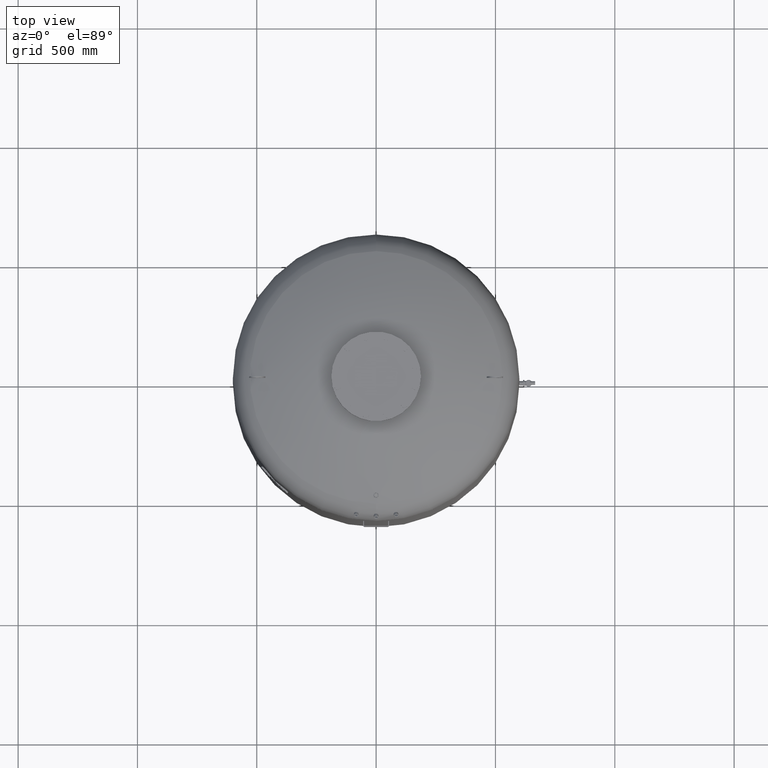
[diagram: clean part render]
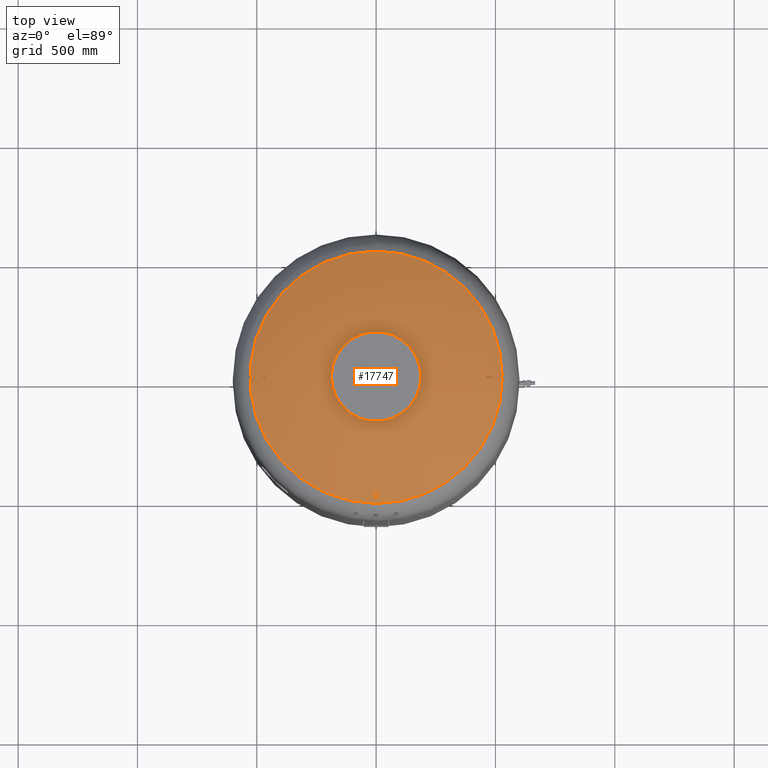
[diagram: same view with one face highlighted and labeled with its STEP entity id]
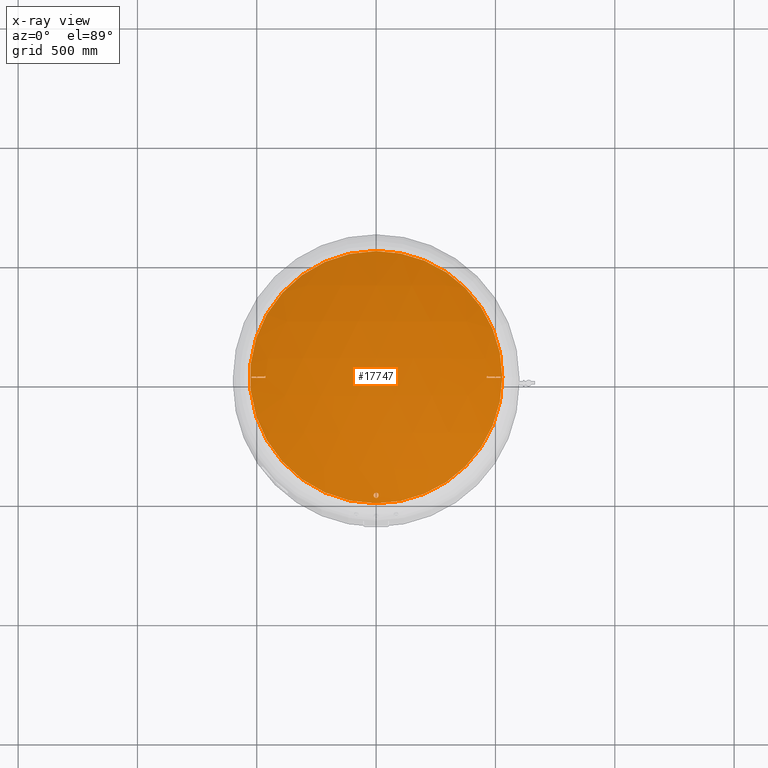
[diagram: x-ray of the same camera — body ghosted, the highlighted face saturated]
A machine part, top view. The second image highlights one B-rep face of the part: STEP entity #17747.
The next image is the same camera in x-ray: the body ghosted, the highlighted face saturated — about 0% of this face is hidden behind the body in this view.
In plain terms, the highlighted spherical surface has radius 1207 mm.
Its self-contained STEP definition (entity closure, byte-faithful):
#16529=CARTESIAN_POINT('',(-3.908790E-014,-505.650000000000260,2308.977681113990900));
#16530=VERTEX_POINT('',#16529);
#16546=CARTESIAN_POINT('',(-3.643333E-014,-484.350000000000310,2318.556003782712200));
#16547=VERTEX_POINT('',#16546);
#16554=CARTESIAN_POINT('',(-3.643333E-014,-484.350000000000310,2318.556003782712200));
#16555=CARTESIAN_POINT('',(-0.665611636080587,-484.350000000000310,2318.556003782712200));
#16556=CARTESIAN_POINT('',(-1.351712007087174,-484.413449330400450,2318.527596291778100));
#16557=CARTESIAN_POINT('',(-2.711455124781883,-484.677684778344770,2318.409278534069900));
#16558=CARTESIAN_POINT('',(-3.385112822109979,-484.878406691486020,2318.319396709681300));
#16559=CARTESIAN_POINT('',(-4.671983453209512,-485.404260841615380,2318.083876063063600));
#16560=CARTESIAN_POINT('',(-5.286383442477947,-485.729841940405830,2317.938035283821600));
#16561=CARTESIAN_POINT('',(-6.418662963042159,-486.474599944024990,2317.604341560041600));
#16562=CARTESIAN_POINT('',(-6.936540506419686,-486.893778895747520,2317.416486438550200));
#16563=CARTESIAN_POINT('',(-7.900192687897327,-487.823356474835690,2316.999774688893900));
#16564=CARTESIAN_POINT('',(-8.369020497877676,-488.373824638455970,2316.752944631033200));
#16565=CARTESIAN_POINT('',(-9.188808647865463,-489.567459190703860,2316.217505560420200));
#16566=CARTESIAN_POINT('',(-9.539857037879660,-490.210574780593670,2315.928918118605900));
#16567=CARTESIAN_POINT('',(-10.100625147679995,-491.546764270494920,2315.329066489736800));
#16568=CARTESIAN_POINT('',(-10.310736765037014,-492.240729558734700,2315.017401333808700));
#16569=CARTESIAN_POINT('',(-10.585453694089770,-493.631410911690980,2314.392563213996700));
#16570=CARTESIAN_POINT('',(-10.650000000000041,-494.328136578031940,2314.079385679025100));
#16571=CARTESIAN_POINT('',(-10.650000000000041,-495.672249771666320,2313.474961828123900));
#16572=CARTESIAN_POINT('',(-10.585380396556669,-496.369268012084660,2313.161397323186500));
#16573=CARTESIAN_POINT('',(-10.310462392525936,-497.760351114899380,2312.535323620084000));
#16574=CARTESIAN_POINT('',(-10.100224561864295,-498.454426017125230,2312.222810133959700));
#16575=CARTESIAN_POINT('',(-9.539219073899464,-499.790709135052230,2311.620892770933100));
#16576=CARTESIAN_POINT('',(-9.188061671035115,-500.433806541516050,2311.331089151720300));
#16577=CARTESIAN_POINT('',(-8.368086172563105,-501.627357286810650,2310.793043409988500));
#16578=CARTESIAN_POINT('',(-7.899179737395413,-502.177760642695720,2310.544825043460200));
#16579=CARTESIAN_POINT('',(-6.935591451669570,-503.107009891746540,2310.125643340669700));
#16580=CARTESIAN_POINT('',(-6.417878505985910,-503.525973237725740,2309.936594437422200));
#16581=CARTESIAN_POINT('',(-5.285911664195274,-504.270411104392510,2309.600610399233600));
#16582=CARTESIAN_POINT('',(-4.671659030031402,-504.595887700676880,2309.453675611559900));
#16583=CARTESIAN_POINT('',(-3.385018268838375,-505.121615967432380,2309.216307020834400));
#16584=CARTESIAN_POINT('',(-2.711440963249321,-505.322316471515020,2309.125671514436800));
#16585=CARTESIAN_POINT('',(-1.351770687093105,-505.586540768529060,2309.006343822394200));
#16586=CARTESIAN_POINT('',(-0.665662584297589,-505.650000000000260,2308.977681113990900));
#16587=CARTESIAN_POINT('',(-3.908790E-014,-505.650000000000260,2308.977681113990900));
#16588=B_SPLINE_CURVE_WITH_KNOTS('',3,(#16554,#16555,#16556,#16557,#16558,#16559,#16560,#16561,#16562,#16563,#16564,#16565,#16566,#16567,#16568,#16569,#16570,#16571,#16572,#16573,#16574,#16575,#16576,#16577,#16578,#16579,#16580,#16581,#16582,#16583,#16584,#16585,#16586,#16587),.UNSPECIFIED.,.F.,.U.,(4,2,2,2,2,2,2,2,2,2,2,2,2,2,2,2,4),(33.660410364601788,35.657245272843440,37.654080181085092,39.650915089326745,41.647749997568390,43.857754539841181,46.067759082113966,48.277763624386751,50.487768166659535,52.699043554402891,54.910318942146247,57.121594329889604,59.332869717632960,61.329857470525610,63.326845223418267,65.323832976310925,67.320820729203575),.UNSPECIFIED.);
#16589=EDGE_CURVE('',#16547,#16530,#16588,.T.);
#17478=CARTESIAN_POINT('',(1.036830E-013,528.621296296296240,2298.084570483804800));
#17479=VERTEX_POINT('',#17478);
#17487=CARTESIAN_POINT('',(528.621296296296240,-2.239550E-014,2298.084570483804800));
#17488=VERTEX_POINT('',#17487);
#17489=CARTESIAN_POINT('',(3.410787E-015,-2.239550E-014,2298.084570483804800));
#17490=DIRECTION('',(0.0,0.0,-1.0));
#17491=DIRECTION('',(1.0,0.0,0.0));
#17492=AXIS2_PLACEMENT_3D('',#17489,#17490,#17491);
#17493=CIRCLE('',#17492,528.621296296296240);
#17494=EDGE_CURVE('',#17479,#17488,#17493,.T.);
#17496=CARTESIAN_POINT('',(3.894773E-014,-528.621296296296240,2298.084570483804800));
#17497=VERTEX_POINT('',#17496);
#17498=CARTESIAN_POINT('',(3.410787E-015,-2.239550E-014,2298.084570483804800));
#17499=DIRECTION('',(0.0,0.0,-1.0));
#17500=DIRECTION('',(1.0,0.0,0.0));
#17501=AXIS2_PLACEMENT_3D('',#17498,#17499,#17500);
#17502=CIRCLE('',#17501,528.621296296296240);
#17503=EDGE_CURVE('',#17488,#17497,#17502,.T.);
#17615=CARTESIAN_POINT('',(1.237204E-013,-2.217223E-013,1213.0));
#17616=DIRECTION('',(0.0,-1.0,0.0));
#17617=DIRECTION('',(-1.0,0.0,0.0));
#17618=AXIS2_PLACEMENT_3D('',#17615,#17616,#17617);
#17619=SPHERICAL_SURFACE('',#17618,1207.000000000000200);
#17620=ORIENTED_EDGE('',*,*,#17503,.F.);
#17621=ORIENTED_EDGE('',*,*,#17494,.F.);
#17622=CARTESIAN_POINT('',(3.410787E-015,-2.239550E-014,2298.084570483804800));
#17623=DIRECTION('',(0.0,0.0,-1.0));
#17624=DIRECTION('',(1.0,0.0,0.0));
#17625=AXIS2_PLACEMENT_3D('',#17622,#17623,#17624);
#17626=CIRCLE('',#17625,528.621296296296240);
#17627=EDGE_CURVE('',#17497,#17479,#17626,.T.);
#17628=ORIENTED_EDGE('',*,*,#17627,.F.);
#17629=EDGE_LOOP('',(#17620,#17621,#17628));
#17630=FACE_OUTER_BOUND('',#17629,.T.);
#17631=CARTESIAN_POINT('',(463.451600218966230,-3.000000000000292,2327.474142479079100));
#17632=VERTEX_POINT('',#17631);
#17633=CARTESIAN_POINT('',(463.451600218966350,2.999999999999727,2327.474142479080000));
#17634=VERTEX_POINT('',#17633);
#17635=CARTESIAN_POINT('',(143.673995061822890,7.801844E-013,1173.196972395376000));
#17636=DIRECTION('',(-0.963701753162816,-6.720348E-015,0.266981143436978));
#17637=DIRECTION('',(-0.266981143436977,0.0,-0.963701753162815));
#17638=AXIS2_PLACEMENT_3D('',#17635,#17636,#17637);
#17639=CIRCLE('',#17638,1197.757280143385700);
#17640=EDGE_CURVE('',#17632,#17634,#17639,.T.);
#17641=ORIENTED_EDGE('',*,*,#17640,.T.);
#17642=CARTESIAN_POINT('',(521.618748390259730,3.000000000000095,2301.464000933324300));
#17643=VERTEX_POINT('',#17642);
#17644=CARTESIAN_POINT('',(1.015543E-013,2.999999999995042,1213.0));
#17645=DIRECTION('',(0.0,1.0,0.0));
#17646=DIRECTION('',(0.0,0.0,-1.0));
#17647=AXIS2_PLACEMENT_3D('',#17644,#17645,#17646);
#17648=CIRCLE('',#17647,1206.996271742378000);
#17649=EDGE_CURVE('',#17634,#17643,#17648,.T.);
#17650=ORIENTED_EDGE('',*,*,#17649,.T.);
#17651=CARTESIAN_POINT('',(521.618748390259610,-2.999999999999862,2301.464000933324300));
#17652=VERTEX_POINT('',#17651);
#17653=CARTESIAN_POINT('',(204.387205511080450,1.203566E-012,1156.377160358846400));
#17654=DIRECTION('',(0.963701753162815,6.720348E-015,-0.266981143436977));
#17655=DIRECTION('',(0.266981143436977,0.0,0.963701753162815));
#17656=AXIS2_PLACEMENT_3D('',#17653,#17654,#17655);
#17657=CIRCLE('',#17656,1188.220823018324600);
#17658=EDGE_CURVE('',#17643,#17652,#17657,.T.);
#17659=ORIENTED_EDGE('',*,*,#17658,.T.);
#17660=CARTESIAN_POINT('',(1.458865E-013,-3.000000000004973,1213.0));
#17661=DIRECTION('',(0.0,-1.0,0.0));
#17662=DIRECTION('',(0.0,0.0,1.0));
#17663=AXIS2_PLACEMENT_3D('',#17660,#17661,#17662);
#17664=CIRCLE('',#17663,1206.996271742378000);
#17665=EDGE_CURVE('',#17652,#17632,#17664,.T.);
#17666=ORIENTED_EDGE('',*,*,#17665,.T.);
#17667=EDGE_LOOP('',(#17641,#17650,#17659,#17666));
#17668=FACE_BOUND('',#17667,.T.);
#17669=CARTESIAN_POINT('',(-463.451600218966290,2.999999999999727,2327.474142479079500));
#17670=VERTEX_POINT('',#17669);
#17671=CARTESIAN_POINT('',(-463.451600218966230,-3.000000000000292,2327.474142479079100));
#17672=VERTEX_POINT('',#17671);
#17673=CARTESIAN_POINT('',(-143.673995061822890,7.801844E-013,1173.196972395376000));
#17674=DIRECTION('',(0.963701753162816,-6.720348E-015,0.266981143436978));
#17675=DIRECTION('',(-0.266981143436977,0.0,0.963701753162815));
#17676=AXIS2_PLACEMENT_3D('',#17673,#17674,#17675);
#17677=CIRCLE('',#17676,1197.757280143385700);
#17678=EDGE_CURVE('',#17670,#17672,#17677,.T.);
#17679=ORIENTED_EDGE('',*,*,#17678,.T.);
#17680=CARTESIAN_POINT('',(-521.618748390259610,-2.999999999999862,2301.464000933324300));
#17681=VERTEX_POINT('',#17680);
#17682=CARTESIAN_POINT('',(1.015543E-013,-3.000000000004973,1213.0));
#17683=DIRECTION('',(0.0,-1.0,0.0));
#17684=DIRECTION('',(0.0,0.0,1.0));
#17685=AXIS2_PLACEMENT_3D('',#17682,#17683,#17684);
#17686=CIRCLE('',#17685,1206.996271742378000);
#17687=EDGE_CURVE('',#17672,#17681,#17686,.T.);
#17688=ORIENTED_EDGE('',*,*,#17687,.T.);
#17689=CARTESIAN_POINT('',(-521.618748390259730,3.000000000000095,2301.464000933324300));
#17690=VERTEX_POINT('',#17689);
#17691=CARTESIAN_POINT('',(-204.387205511080400,1.203566E-012,1156.377160358846400));
#17692=DIRECTION('',(-0.963701753162815,6.720348E-015,-0.266981143436977));
#17693=DIRECTION('',(0.266981143436977,0.0,-0.963701753162815));
#17694=AXIS2_PLACEMENT_3D('',#17691,#17692,#17693);
#17695=CIRCLE('',#17694,1188.220823018324600);
#17696=EDGE_CURVE('',#17681,#17690,#17695,.T.);
#17697=ORIENTED_EDGE('',*,*,#17696,.T.);
#17698=CARTESIAN_POINT('',(1.458865E-013,2.999999999995042,1213.0));
#17699=DIRECTION('',(0.0,1.0,0.0));
#17700=DIRECTION('',(0.0,0.0,-1.0));
#17701=AXIS2_PLACEMENT_3D('',#17698,#17699,#17700);
#17702=CIRCLE('',#17701,1206.996271742378000);
#17703=EDGE_CURVE('',#17690,#17670,#17702,.T.);
#17704=ORIENTED_EDGE('',*,*,#17703,.T.);
#17705=EDGE_LOOP('',(#17679,#17688,#17697,#17704));
#17706=FACE_BOUND('',#17705,.T.);
#17707=CARTESIAN_POINT('',(-3.908790E-014,-505.650000000000260,2308.977681113990900));
#17708=CARTESIAN_POINT('',(0.665662584297512,-505.650000000000260,2308.977681113990900));
#17709=CARTESIAN_POINT('',(1.351770687093029,-505.586540768529060,2309.006343822394200));
#17710=CARTESIAN_POINT('',(2.711440963249246,-505.322316471515020,2309.125671514436800));
#17711=CARTESIAN_POINT('',(3.385018268838298,-505.121615967432380,2309.216307020834400));
#17712=CARTESIAN_POINT('',(4.671659030031323,-504.595887700676880,2309.453675611559900));
#17713=CARTESIAN_POINT('',(5.285911664195194,-504.270411104392510,2309.600610399233600));
#17714=CARTESIAN_POINT('',(6.417878505985831,-503.525973237725740,2309.936594437422200));
#17715=CARTESIAN_POINT('',(6.935591451669492,-503.107009891746540,2310.125643340669700));
#17716=CARTESIAN_POINT('',(7.899179737395336,-502.177760642695720,2310.544825043460200));
#17717=CARTESIAN_POINT('',(8.368086172563030,-501.627357286810650,2310.793043409988500));
#17718=CARTESIAN_POINT('',(9.188061671035039,-500.433806541516050,2311.331089151720300));
#17719=CARTESIAN_POINT('',(9.539219073899387,-499.790709135052230,2311.620892770933100));
#17720=CARTESIAN_POINT('',(10.100224561864218,-498.454426017125230,2312.222810133959700));
#17721=CARTESIAN_POINT('',(10.310462392525860,-497.760351114899380,2312.535323620084000));
#17722=CARTESIAN_POINT('',(10.585380396556593,-496.369268012084660,2313.161397323186500));
#17723=CARTESIAN_POINT('',(10.649999999999967,-495.672249771666320,2313.474961828123900));
#17724=CARTESIAN_POINT('',(10.649999999999967,-494.328136578031940,2314.079385679025100));
#17725=CARTESIAN_POINT('',(10.585453694089695,-493.631410911691030,2314.392563213996700));
#17726=CARTESIAN_POINT('',(10.310736765036935,-492.240729558734700,2315.017401333808700));
#17727=CARTESIAN_POINT('',(10.100625147679885,-491.546764270494800,2315.329066489736800));
#17728=CARTESIAN_POINT('',(9.539857037879532,-490.210574780593560,2315.928918118605900));
#17729=CARTESIAN_POINT('',(9.188808647865377,-489.567459190703860,2316.217505560420200));
#17730=CARTESIAN_POINT('',(8.369020497877601,-488.373824638455970,2316.752944631033200));
#17731=CARTESIAN_POINT('',(7.900192687897256,-487.823356474835690,2316.999774688893900));
#17732=CARTESIAN_POINT('',(6.936540506419615,-486.893778895747520,2317.416486438550200));
#17733=CARTESIAN_POINT('',(6.418662963042084,-486.474599944024990,2317.604341560041600));
#17734=CARTESIAN_POINT('',(5.286383442477869,-485.729841940405830,2317.938035283821600));
#17735=CARTESIAN_POINT('',(4.671983453209435,-485.404260841615380,2318.083876063063600));
#17736=CARTESIAN_POINT('',(3.385112822109905,-484.878406691486020,2318.319396709681300));
#17737=CARTESIAN_POINT('',(2.711455124781810,-484.677684778344770,2318.409278534069900));
#17738=CARTESIAN_POINT('',(1.351712007087104,-484.413449330400450,2318.527596291778100));
#17739=CARTESIAN_POINT('',(0.665611636080514,-484.350000000000310,2318.556003782712200));
#17740=CARTESIAN_POINT('',(-3.643333E-014,-484.350000000000310,2318.556003782712200));
#17741=B_SPLINE_CURVE_WITH_KNOTS('',3,(#17707,#17708,#17709,#17710,#17711,#17712,#17713,#17714,#17715,#17716,#17717,#17718,#17719,#17720,#17721,#17722,#17723,#17724,#17725,#17726,#17727,#17728,#17729,#17730,#17731,#17732,#17733,#17734,#17735,#17736,#17737,#17738,#17739,#17740),.UNSPECIFIED.,.F.,.U.,(4,2,2,2,2,2,2,2,2,2,2,2,2,2,2,2,4),(0.0,1.996987752892653,3.993975505785305,5.990963258677958,7.987951011570610,10.199226399313968,12.410501787057324,14.621777174800682,16.833052562544040,19.043057104816825,21.253061647089613,23.463066189362401,25.673070731635185,27.669905639876838,29.666740548118486,31.663575456360135,33.660410364601788),.UNSPECIFIED.);
#17742=EDGE_CURVE('',#16530,#16547,#17741,.T.);
#17743=ORIENTED_EDGE('',*,*,#17742,.F.);
#17744=ORIENTED_EDGE('',*,*,#16589,.F.);
#17745=EDGE_LOOP('',(#17743,#17744));
#17746=FACE_BOUND('',#17745,.T.);
#17747=ADVANCED_FACE('',(#17630,#17668,#17706,#17746),#17619,.T.);